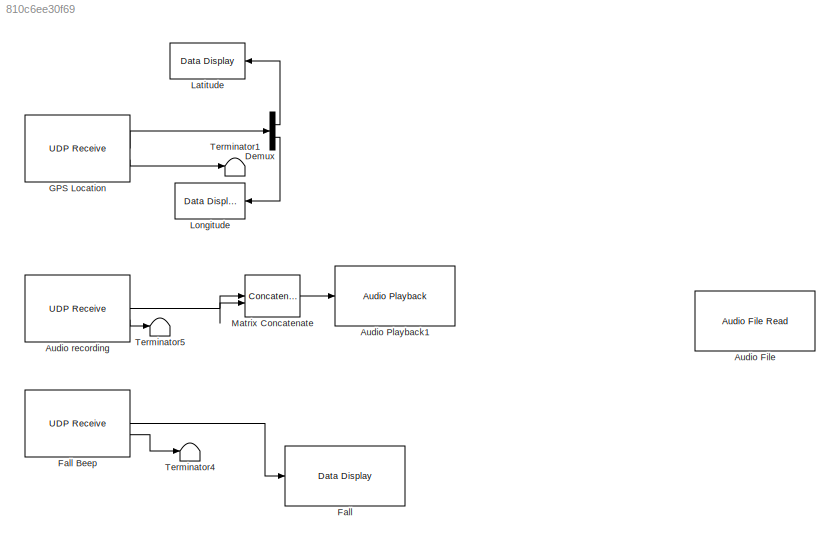
MODEL slx_810c6ee30f69
KIND model
CONFIG AbsTol = auto
CONFIG EnableMultiTasking = off
CONFIG FixedStep = auto
CONFIG MaxStep = auto
CONFIG MinStep = auto
CONFIG RelTol = 1e-3
CONFIG SampleTimeConstraint = Unconstrained
CONFIG SolverName = FixedStepAuto
CONFIG StartTime = 0.0
CONFIG StopTime = inf
BLOCK [Reference] Audio File  REF=androidaudiovideolib/Audio File Read
  Commented = on
  SourceBlock = androidaudiovideolib/Audio File Read
  SourceType = codertarget.internal.androidAudioFileRead
BLOCK [Reference] Audio Playback1  REF=androidaudiovideolib/Audio Playback
  SourceBlock = androidaudiovideolib/Audio Playback
  SourceType = codertarget.internal.androidAudioPlayback
BLOCK [Reference] Audio recording  REF=androidcommunicationlib/UDP Receive
  SourceBlock = androidcommunicationlib/UDP Receive
  SourceType = UDP Receive
BLOCK [Demux] Demux
  Outputs = 2
BLOCK [Reference] Fall  REF=androiduilib/Data Display
  Commented = on
  SourceBlock = androiduilib/Data Display
  SourceType = codertarget.internal.androidDataDisplay
BLOCK [Reference] Fall Beep  REF=androidcommunicationlib/UDP Receive
  Commented = on
  SourceBlock = androidcommunicationlib/UDP Receive
  SourceType = UDP Receive
BLOCK [Reference] GPS Location  REF=androidcommunicationlib/UDP Receive
  SourceBlock = androidcommunicationlib/UDP Receive
  SourceType = UDP Receive
BLOCK [Reference] Latitude  REF=androiduilib/Data Display
  SourceBlock = androiduilib/Data Display
  SourceType = codertarget.internal.androidDataDisplay
BLOCK [Reference] Longitude  REF=androiduilib/Data Display
  SourceBlock = androiduilib/Data Display
  SourceType = codertarget.internal.androidDataDisplay
BLOCK [Concatenate] Matrix Concatenate
  ConcatenateDimension = 2
  Mode = Multidimensional array
BLOCK [Terminator] Terminator1
BLOCK [Terminator] Terminator4
  Commented = on
BLOCK [Terminator] Terminator5
NET Audio recording:1 -> Matrix Concatenate:1, Matrix Concatenate:2
LINE Audio recording:2 -> Terminator5:1
LINE Demux:1 -> Latitude:1
LINE Demux:2 -> Longitude:1
LINE Fall Beep:1 -> Fall:1
LINE Fall Beep:2 -> Terminator4:1
LINE GPS Location:1 -> Demux:1
LINE GPS Location:2 -> Terminator1:1
LINE Matrix Concatenate:1 -> Audio Playback1:1
note: NET lines group one-source signal fan-out (src -> all destinations, sorted); 1:1 wires keep LINE
